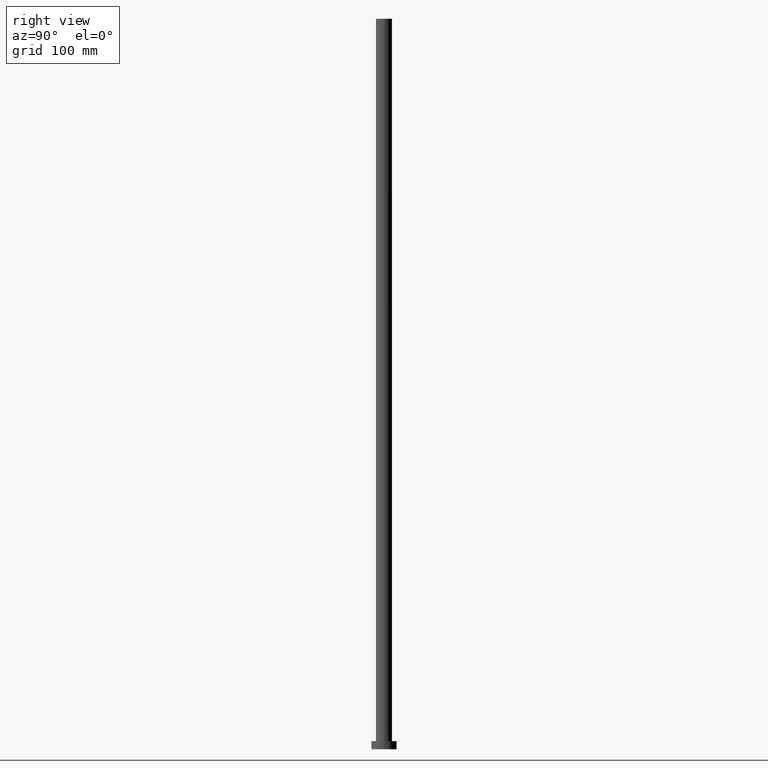
[diagram: clean part render]
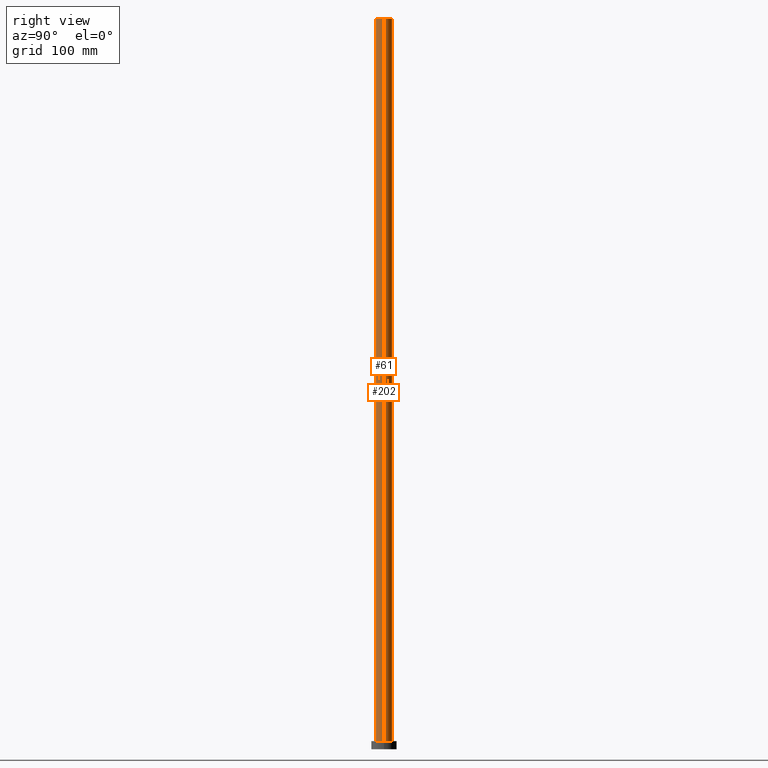
[diagram: same view with one multi-face feature highlighted, each face labeled with its STEP entity id]
A machine part, right view. The highlighted faces form ONE feature: a constant-radius fillet chain: 2 tangent blend faces with common blend radius 7 mm. The faces share edges in the B-rep.
Their STEP definitions:
[1] entity #202 (Cylinder):
#1 = CARTESIAN_POINT ( 'NONE',  ( -7.000000000000000888, 0.000000000000000000, 7.000000000000000000 ) ) ;
#2 = VERTEX_POINT ( 'NONE', #33 ) ;
#3 = LINE ( 'NONE', #43, #13 ) ;
#8 = DIRECTION ( 'NONE',  ( -0.000000000000000000, -0.000000000000000000, -1.000000000000000000 ) ) ;
#13 = VECTOR ( 'NONE', #119, 1000.000000000000000 ) ;
#16 = ORIENTED_EDGE ( 'NONE', *, *, #112, .F. ) ;
#24 = EDGE_CURVE ( 'NONE', #2, #107, #235, .T. ) ;
#28 = DIRECTION ( 'NONE',  ( -1.000000000000000000, 0.000000000000000000, 0.000000000000000000 ) ) ;
#33 = CARTESIAN_POINT ( 'NONE',  ( -7.000000000000000888, 0.000000000000000000, 630.0000000000000000 ) ) ;
#34 = DIRECTION ( 'NONE',  ( 0.000000000000000000, 0.000000000000000000, 1.000000000000000000 ) ) ;
#43 = CARTESIAN_POINT ( 'NONE',  ( 7.000000000000000888, 8.572527594031474176E-16, 630.0000000000000000 ) ) ;
#45 = EDGE_LOOP ( 'NONE', ( #16, #93, #50, #127 ) ) ;
#50 = ORIENTED_EDGE ( 'NONE', *, *, #90, .T. ) ;
#52 = CARTESIAN_POINT ( 'NONE',  ( -7.000000000000000888, 0.000000000000000000, 630.0000000000000000 ) ) ;
#54 = CARTESIAN_POINT ( 'NONE',  ( 0.000000000000000000, 0.000000000000000000, 7.000000000000000000 ) ) ;
#71 = AXIS2_PLACEMENT_3D ( 'NONE', #54, #34, #73 ) ;
#73 = DIRECTION ( 'NONE',  ( 1.000000000000000000, 0.000000000000000000, 0.000000000000000000 ) ) ;
#75 = VERTEX_POINT ( 'NONE', #178 ) ;
#84 = AXIS2_PLACEMENT_3D ( 'NONE', #86, #8, #28 ) ;
#86 = CARTESIAN_POINT ( 'NONE',  ( 0.000000000000000000, 0.000000000000000000, 630.0000000000000000 ) ) ;
#90 = EDGE_CURVE ( 'NONE', #160, #107, #201, .T. ) ;
#92 = FACE_OUTER_BOUND ( 'NONE', #45, .T. ) ;
#93 = ORIENTED_EDGE ( 'NONE', *, *, #187, .T. ) ;
#107 = VERTEX_POINT ( 'NONE', #1 ) ;
#112 = EDGE_CURVE ( 'NONE', #75, #2, #193, .T. ) ;
#119 = DIRECTION ( 'NONE',  ( -0.000000000000000000, -0.000000000000000000, -1.000000000000000000 ) ) ;
#127 = ORIENTED_EDGE ( 'NONE', *, *, #24, .F. ) ;
#134 = DIRECTION ( 'NONE',  ( 0.000000000000000000, 0.000000000000000000, 1.000000000000000000 ) ) ;
#154 = DIRECTION ( 'NONE',  ( 1.000000000000000000, 0.000000000000000000, 0.000000000000000000 ) ) ;
#160 = VERTEX_POINT ( 'NONE', #180 ) ;
#172 = CYLINDRICAL_SURFACE ( 'NONE', #84, 7.000000000000000888 ) ;
#178 = CARTESIAN_POINT ( 'NONE',  ( 7.000000000000000888, 8.572527594031474176E-16, 630.0000000000000000 ) ) ;
#180 = CARTESIAN_POINT ( 'NONE',  ( 7.000000000000000888, 8.572527594031474176E-16, 7.000000000000000000 ) ) ;
#187 = EDGE_CURVE ( 'NONE', #75, #160, #3, .T. ) ;
#193 = CIRCLE ( 'NONE', #251, 7.000000000000000888 ) ;
#201 = CIRCLE ( 'NONE', #71, 7.000000000000000888 ) ;
#202 = ADVANCED_FACE ( 'NONE', ( #92 ), #172, .T. ) ;
#212 = DIRECTION ( 'NONE',  ( -0.000000000000000000, -0.000000000000000000, -1.000000000000000000 ) ) ;
#233 = VECTOR ( 'NONE', #212, 1000.000000000000000 ) ;
#235 = LINE ( 'NONE', #52, #233 ) ;
#251 = AXIS2_PLACEMENT_3D ( 'NONE', #254, #134, #154 ) ;
#254 = CARTESIAN_POINT ( 'NONE',  ( 0.000000000000000000, 0.000000000000000000, 630.0000000000000000 ) ) ;
[2] entity #61 (Cylinder):
#1 = CARTESIAN_POINT ( 'NONE',  ( -7.000000000000000888, 0.000000000000000000, 7.000000000000000000 ) ) ;
#2 = VERTEX_POINT ( 'NONE', #33 ) ;
#3 = LINE ( 'NONE', #43, #13 ) ;
#4 = DIRECTION ( 'NONE',  ( 0.000000000000000000, 0.000000000000000000, 1.000000000000000000 ) ) ;
#13 = VECTOR ( 'NONE', #119, 1000.000000000000000 ) ;
#19 = AXIS2_PLACEMENT_3D ( 'NONE', #176, #218, #116 ) ;
#21 = DIRECTION ( 'NONE',  ( -1.000000000000000000, 0.000000000000000000, 0.000000000000000000 ) ) ;
#24 = EDGE_CURVE ( 'NONE', #2, #107, #235, .T. ) ;
#27 = ORIENTED_EDGE ( 'NONE', *, *, #191, .F. ) ;
#33 = CARTESIAN_POINT ( 'NONE',  ( -7.000000000000000888, 0.000000000000000000, 630.0000000000000000 ) ) ;
#43 = CARTESIAN_POINT ( 'NONE',  ( 7.000000000000000888, 8.572527594031474176E-16, 630.0000000000000000 ) ) ;
#52 = CARTESIAN_POINT ( 'NONE',  ( -7.000000000000000888, 0.000000000000000000, 630.0000000000000000 ) ) ;
#61 = ADVANCED_FACE ( 'NONE', ( #194 ), #140, .T. ) ;
#72 = EDGE_LOOP ( 'NONE', ( #91, #27, #88, #123 ) ) ;
#75 = VERTEX_POINT ( 'NONE', #178 ) ;
#88 = ORIENTED_EDGE ( 'NONE', *, *, #24, .T. ) ;
#91 = ORIENTED_EDGE ( 'NONE', *, *, #187, .F. ) ;
#95 = AXIS2_PLACEMENT_3D ( 'NONE', #242, #4, #161 ) ;
#107 = VERTEX_POINT ( 'NONE', #1 ) ;
#109 = CARTESIAN_POINT ( 'NONE',  ( 0.000000000000000000, 0.000000000000000000, 630.0000000000000000 ) ) ;
#116 = DIRECTION ( 'NONE',  ( 1.000000000000000000, 0.000000000000000000, 0.000000000000000000 ) ) ;
#119 = DIRECTION ( 'NONE',  ( -0.000000000000000000, -0.000000000000000000, -1.000000000000000000 ) ) ;
#123 = ORIENTED_EDGE ( 'NONE', *, *, #159, .T. ) ;
#126 = CIRCLE ( 'NONE', #19, 7.000000000000000888 ) ;
#129 = CIRCLE ( 'NONE', #95, 7.000000000000000888 ) ;
#140 = CYLINDRICAL_SURFACE ( 'NONE', #205, 7.000000000000000888 ) ;
#159 = EDGE_CURVE ( 'NONE', #107, #160, #126, .T. ) ;
#160 = VERTEX_POINT ( 'NONE', #180 ) ;
#161 = DIRECTION ( 'NONE',  ( 1.000000000000000000, 0.000000000000000000, 0.000000000000000000 ) ) ;
#176 = CARTESIAN_POINT ( 'NONE',  ( 0.000000000000000000, 0.000000000000000000, 7.000000000000000000 ) ) ;
#178 = CARTESIAN_POINT ( 'NONE',  ( 7.000000000000000888, 8.572527594031474176E-16, 630.0000000000000000 ) ) ;
#180 = CARTESIAN_POINT ( 'NONE',  ( 7.000000000000000888, 8.572527594031474176E-16, 7.000000000000000000 ) ) ;
#187 = EDGE_CURVE ( 'NONE', #75, #160, #3, .T. ) ;
#190 = DIRECTION ( 'NONE',  ( -0.000000000000000000, -0.000000000000000000, -1.000000000000000000 ) ) ;
#191 = EDGE_CURVE ( 'NONE', #2, #75, #129, .T. ) ;
#194 = FACE_OUTER_BOUND ( 'NONE', #72, .T. ) ;
#205 = AXIS2_PLACEMENT_3D ( 'NONE', #109, #190, #21 ) ;
#212 = DIRECTION ( 'NONE',  ( -0.000000000000000000, -0.000000000000000000, -1.000000000000000000 ) ) ;
#218 = DIRECTION ( 'NONE',  ( 0.000000000000000000, 0.000000000000000000, 1.000000000000000000 ) ) ;
#233 = VECTOR ( 'NONE', #212, 1000.000000000000000 ) ;
#235 = LINE ( 'NONE', #52, #233 ) ;
#242 = CARTESIAN_POINT ( 'NONE',  ( 0.000000000000000000, 0.000000000000000000, 630.0000000000000000 ) ) ;